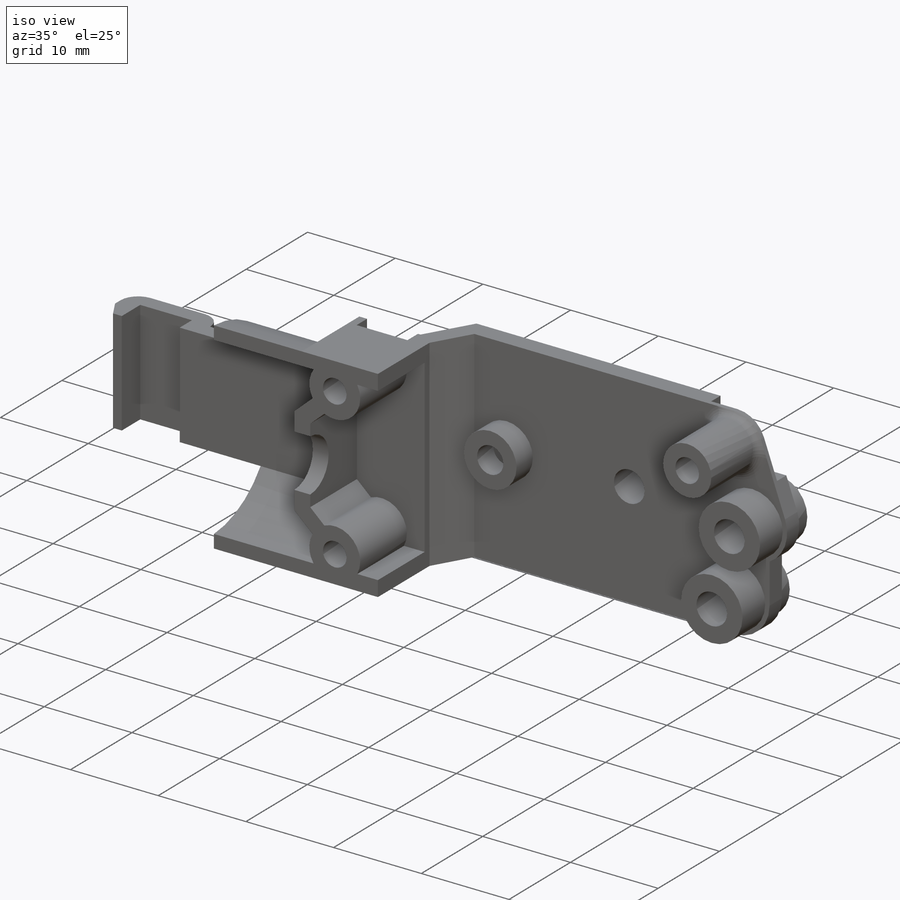
[diagram: iso view]
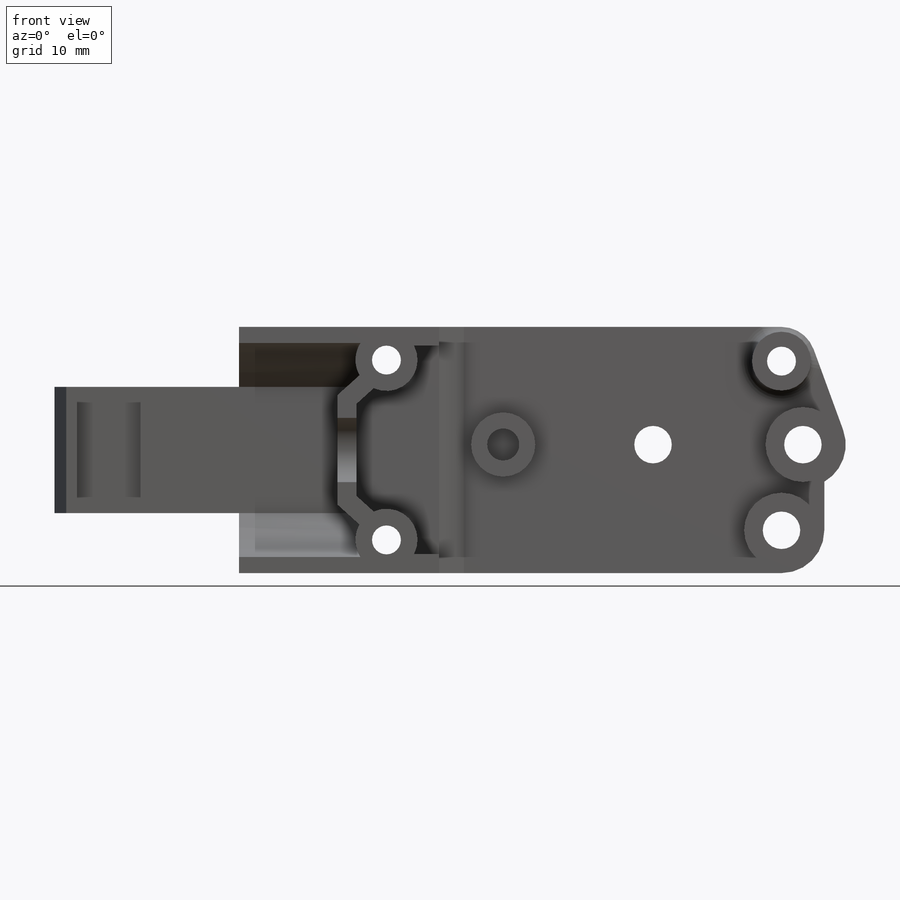
[diagram: front view]
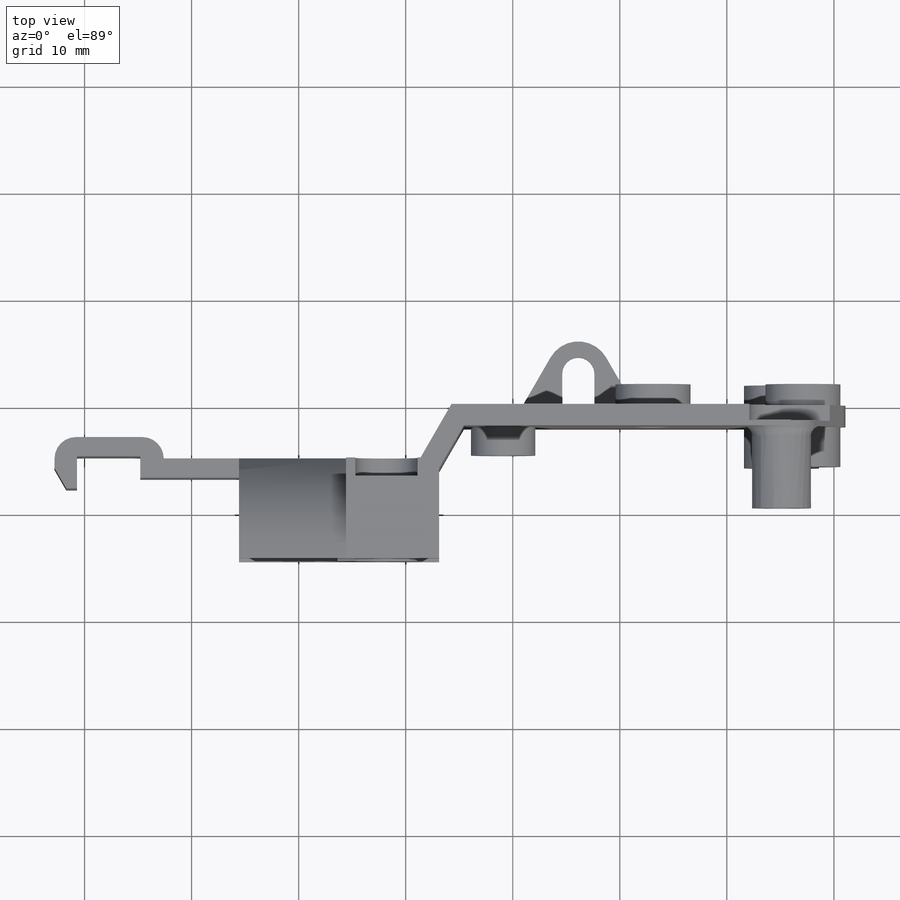
[diagram: top view]
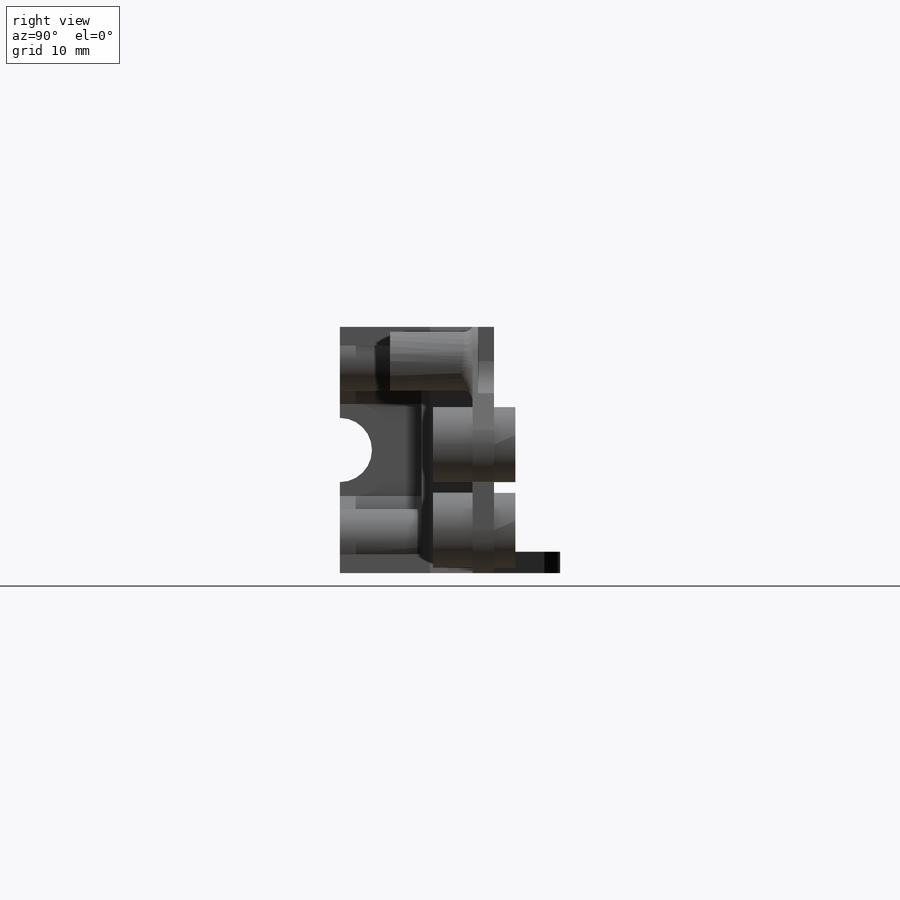
[diagram: right view]
SOLIDWORKS PART (.sldprt)
format: sldprt  version: not decoded by parser v0  size: 684,032 bytes
history: native  units: mm
features: sketch x18, extrude x13, cut_extrude x5, fillet x2, material x1, plane x1, mirror x1 (+15 scaffold rows collapsed)
feature tree (56):
  scaffold x15  (default folders/planes/origin — collapsed)
  material  "Material <not specified>"
  sketch  "Sketch1"  dims[c1.D2=2.7mm c1.D9=3.5mm c1.D10=3.5mm c1.D11=3.0mm c1.D12=3.5mm c1.D13=2.7mm c1.D14=4.0mm c1.D15=3.2mm c1.D19=4.0mm c1.D1=9.0mm c1.D3=3.1mm c1.D4=13.6mm c1.D5=10.9mm c1.D6=14.0mm c1.D7=12.0mm c1.D8=2.0mm c1.D16=12.0mm c1.D17=3.1mm c1.D18=23.0mm c1.D20=8.0mm c1.D21=7.8mm c1.D22=14.8mm c2.D3=35.67mm c2.D4=14.0mm]
  extrude  "Boss-Extrude1"  Depth=2mm
  plane  "Plane1"
  sketch  "Sketch4"  dims[D1=7.0mm D2=7.0mm]
  extrude  "Boss-Extrude3"  Depth=3.7mm
  sketch  "Sketch3"  dims[D1=7.0mm]
  extrude  "Boss-Extrude4"  Depth=7.7mm
  sketch  "Sketch5"  dims[c1.D1=~12.805618mm c2.D1=120.0deg c2.D2=3.0mm c2.D3=1.0mm c2.D4=1.9mm c2.D5=1.8mm c2.D6=~8.440871mm c3.D1=2.0mm c3.D6=~11.203414mm c4.D6=120.0deg c4.D7=5.0mm c4.D8=2.0mm c4.D9=1.8mm c4.D10=34.8mm c4.D11=2.2mm c4.D12=8.0mm c4.D13=1.0mm c4.D14=~0.907087mm c5.D14=120.0deg]
  extrude  "Boss-Extrude5"  Depth=11.8mm
  fillet  "Fillet1"  Radius=2mm
  sketch  "Sketch6"  dims[D1=5.5mm]
  extrude  "Boss-Extrude6"  Depth=7.7mm
  sketch  "Sketch8"  dims[D1=6.0mm]
  extrude  "Boss-Extrude7"  Depth=2.65mm
  sketch  "Sketch9"
  extrude  "Boss-Extrude10"  Depth=23mm
  sketch  "Sketch10"  dims[c1.D1=2.9mm c1.D14=2.7mm c1.D11=3.0mm c1.D2=1.3mm c1.D3=1.8mm c1.D4=18.7mm c1.D5=1.8mm c1.D6=10.2mm c1.D7=1.3mm c1.D8=1.75mm c1.D9=3.1mm c1.D10=3.1mm c2.D11=10.9mm c2.D12=1.8mm c2.D13=~2.77579mm c3.D13=45.0deg c3.D15=9.0mm c4.D13=~2.205225mm c5.D13=~53.342891deg c6.D13=~2.124347mm c7.D13=~60.732643deg c7.D11=10.9mm]
  extrude  "Boss-Extrude11"  Depth=7.6mm
  sketch  "Sketch11"
  extrude  "Boss-Extrude12"  [1 undecoded]
  sketch  "Sketch13"  dims[D1=3.0mm]
  cut_extrude  "Cut-Extrude3"  Depth=1.5mm
  fillet  "Fillet2"  Radius=1mm
  sketch  "Sketch14"  dims[c1.D1=20.0mm c1.D2=23.0mm c2.D1=1.8mm c2.D2=~1.504437mm]
  extrude  "Boss-Extrude14"  [1 undecoded]
  sketch  "Sketch12"
  cut_extrude  "Cut-Extrude1"  Depth=1.7mm
  mirror  "Mirror1"
  sketch  "Sketch17"  dims[D1=0.5mm D2=1.0mm D3=~5.342342mm]
  extrude  "Boss-Extrude15"  [1 undecoded]
  sketch  "Sketch18"
  cut_extrude  "Cut-Extrude5"  Depth=10mm
  sketch  "Sketch19"  dims[D1=0.5mm D2=1.5mm]
  extrude  "Boss-Extrude16"  [1 undecoded]
  sketch  "Sketch20"
  cut_extrude  "Cut-Extrude6"  [1 undecoded]
  sketch  "Sketch21"  dims[D1=6.0mm]
  cut_extrude  "Cut-Extrude7"  [1 undecoded]
  sketch  "Sketch22"  dims[c1.D2=3.0mm c1.D3=3.0mm c1.D5=1.5mm c1.D1=~4.716779mm c2.D1=120.0deg c2.D3=6.2mm c2.D4=13.0mm]
  extrude  "Boss-Extrude17"  Depth=2mm
decode coverage: 27 of 39 modeling features carry decoded parameters
note: ~ marks probable driven/reference dimensions
note: 6 parameter values undecoded
summary: no parameter record found for 6 features
note: suppression state not decoded; provenance and decode notes live in map.json
